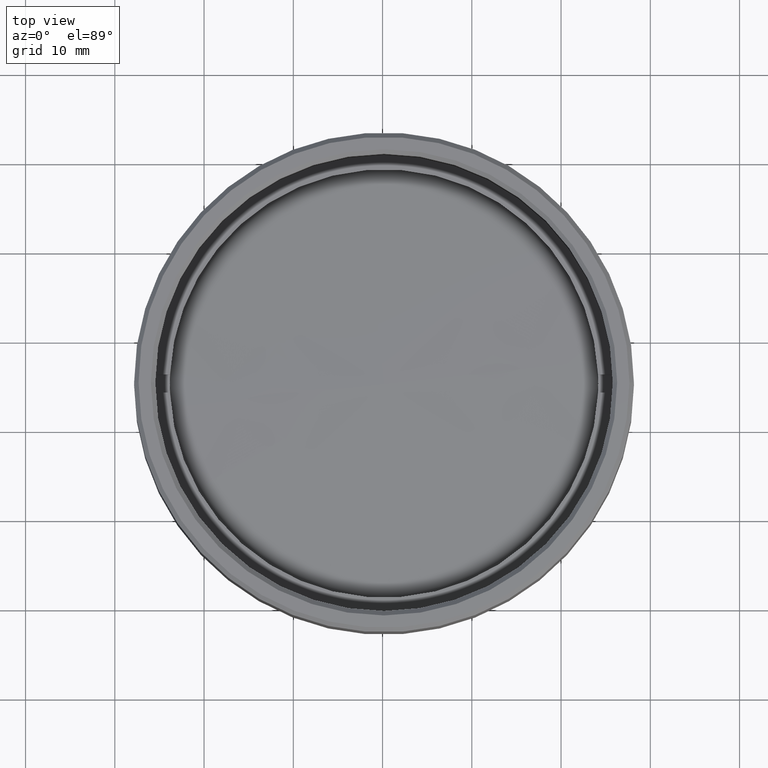
[diagram: clean part render]
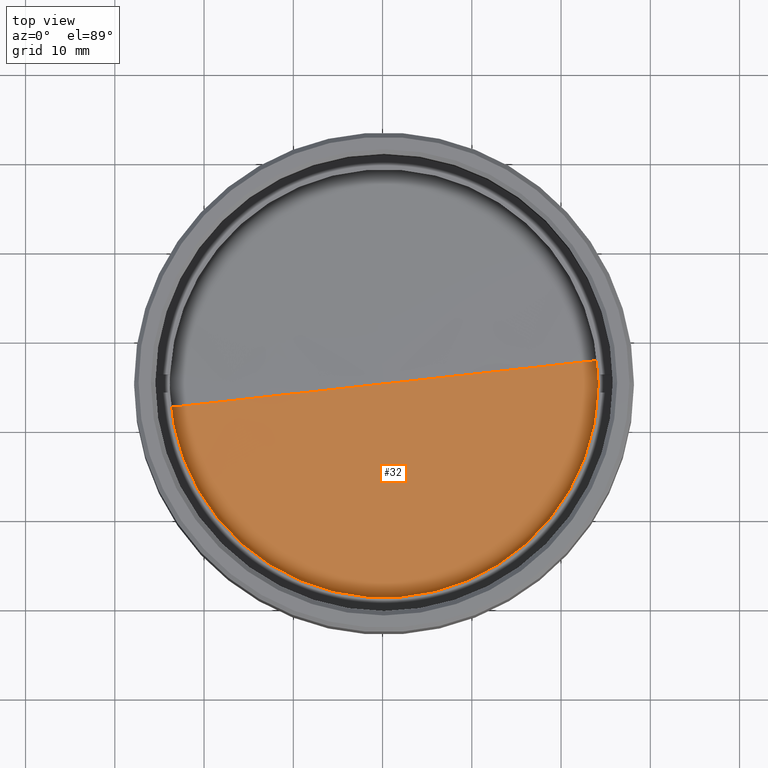
[diagram: same view with one face highlighted and labeled with its STEP entity id]
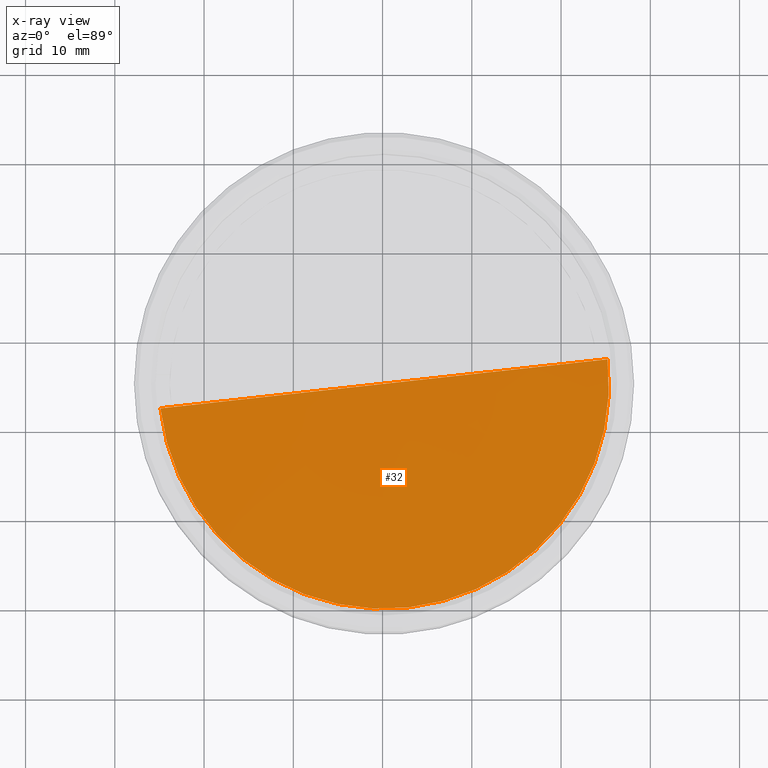
[diagram: x-ray of the same camera — body ghosted, the highlighted face saturated]
A machine part, top view. The second image highlights one B-rep face of the part: STEP entity #32.
The next image is the same camera in x-ray: the body ghosted, the highlighted face saturated — about 0% of this face is hidden behind the body in this view.
In plain terms, the highlighted spherical surface has radius 738.5 mm.
Its self-contained STEP definition (entity closure, byte-faithful):
#32 = ADVANCED_FACE ( 'NONE', ( #1019 ), #1689, .T. ) ;
#177 = AXIS2_PLACEMENT_3D ( 'NONE', #371, #1187, #1727 ) ;
#210 = CARTESIAN_POINT ( 'NONE',  ( 25.20682649329545200, 3.098774404000989762E-15, -0.4303109474437235016 ) ) ;
#228 = EDGE_CURVE ( 'NONE', #1069, #996, #1621, .T. ) ;
#246 = ORIENTED_EDGE ( 'NONE', *, *, #228, .T. ) ;
#371 = CARTESIAN_POINT ( 'NONE',  ( 0.000000000000000000, 0.000000000000000000, -738.5000000000000000 ) ) ;
#390 = CIRCLE ( 'NONE', #1691, 25.20682649329549818 ) ;
#471 = CARTESIAN_POINT ( 'NONE',  ( 0.000000000000000000, 0.000000000000000000, -738.5000000000000000 ) ) ;
#706 = EDGE_CURVE ( 'NONE', #996, #1069, #390, .T. ) ;
#749 = DIRECTION ( 'NONE',  ( 0.000000000000000000, -0.000000000000000000, 1.000000000000000000 ) ) ;
#996 = VERTEX_POINT ( 'NONE', #1179 ) ;
#1019 = FACE_OUTER_BOUND ( 'NONE', #1216, .T. ) ;
#1069 = VERTEX_POINT ( 'NONE', #210 ) ;
#1134 = DIRECTION ( 'NONE',  ( -1.505428541236074762E-17, 0.000000000000000000, 1.000000000000000000 ) ) ;
#1150 = CARTESIAN_POINT ( 'NONE',  ( -1.129843352807873974E-14, 0.000000000000000000, -0.4303109474437240012 ) ) ;
#1179 = CARTESIAN_POINT ( 'NONE',  ( -25.20682649329549818, 0.000000000000000000, -0.4303109474437240012 ) ) ;
#1187 = DIRECTION ( 'NONE',  ( 0.000000000000000000, -1.000000000000000000, 0.000000000000000000 ) ) ;
#1216 = EDGE_LOOP ( 'NONE', ( #1581, #246 ) ) ;
#1305 = AXIS2_PLACEMENT_3D ( 'NONE', #471, #749, #1667 ) ;
#1551 = DIRECTION ( 'NONE',  ( -1.000000000000000000, 0.000000000000000000, -1.505428541236073529E-17 ) ) ;
#1581 = ORIENTED_EDGE ( 'NONE', *, *, #706, .T. ) ;
#1621 = CIRCLE ( 'NONE', #177, 738.5000000000000000 ) ;
#1667 = DIRECTION ( 'NONE',  ( -1.000000000000000000, 0.000000000000000000, 0.000000000000000000 ) ) ;
#1689 = SPHERICAL_SURFACE ( 'NONE', #1305, 738.5000000000000000 ) ;
#1691 = AXIS2_PLACEMENT_3D ( 'NONE', #1150, #1134, #1551 ) ;
#1727 = DIRECTION ( 'NONE',  ( 0.000000000000000000, 0.000000000000000000, -1.000000000000000000 ) ) ;